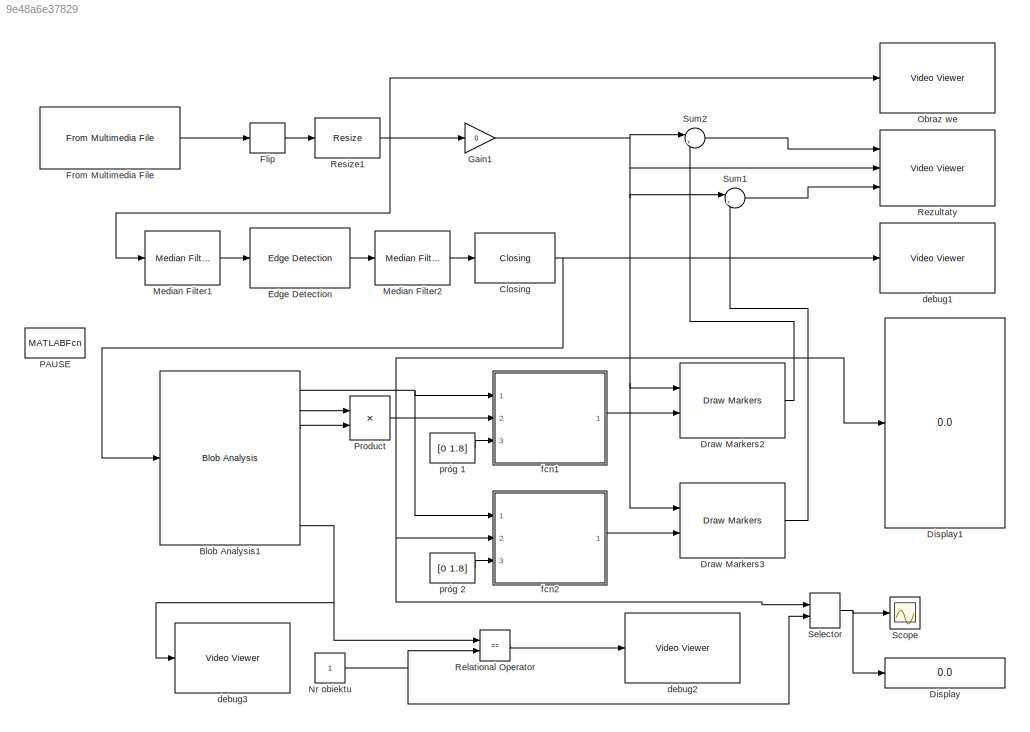
MODEL slx_9e48a6e37829
KIND model
BLOCK [Reference] Blob Analysis1  REF=visionstatistics/Blob Analysis
  LockScale = off
  MultiThreadCoSim = auto
  Ports = [1, 8]
  SourceBlock = visionstatistics/Blob Analysis
  SourceType = Blob Analysis
  Tag = vipblks_row_conv
  accumFracLength = 0
  accumMode = Binary point scaling
  accumWordLength = 32
  angle = off
  area = off
  bBox = off
  centroid = on
  conn = 8
  eccentricity = on
  equivDiameterSq = on
  excludeBorderBlob = off
  extent = on
  fillValues = -1
  firstCoeffFracLength = 14
  firstCoeffMode = Binary point scaling
  firstCoeffWordLength = 16
  isCount = off
  isFill = on
  isLabel = on
  isOutVarDim = off
  majorAxis = on
  maxArea = intmax('uint32')
  maxBlobs = 10
  memoryFracLength = 16
  memoryMode = Same as product output
  memoryWordLength = 32
  minArea = 45
  minorAxis = on
  outDT = double
  outputFracLength = 16
  outputMode = Binary point scaling
  outputWordLength = 32
  overflowMode = off
  perimeter = on
  prodOutputFracLength = 16
  prodOutputMode = Binary point scaling
  prodOutputWordLength = 32
  roundingMode = Floor
  secondCoeffFracLength = 16
  secondCoeffMode = Binary point scaling
  secondCoeffWordLength = 32
  useMaxArea = off
  useMinArea = on
  warnIfNumBlobsExceeded = on
BLOCK [Reference] Closing  REF=visionmorphops/Closing
  MultiThreadCoSim = auto
  Ports = [1, 1]
  SourceBlock = visionmorphops/Closing
  SourceType = Closing
  nhoodsrc = Specify via dialog
  strel = strel('line',5,45)
BLOCK [Display] Display
  Decimation = 1
  Ports = [1]
BLOCK [Display] Display1
  Decimation = 1
  Ports = [1]
BLOCK [Reference] Draw Markers2  REF=visiontextngfix/Draw Markers
  LockScale = off
  MultiThreadCoSim = auto
  Ports = [2, 1]
  SourceBlock = visiontextngfix/Draw Markers
  SourceType = Draw Markers
  accumFracLength = 14
  accumMode = Same as product output
  accumWordLength = 32
  antialiasing = off
  color = [200 255 100]
  display = White
  fill = on
  fillClrSource = Specify via dialog
  imagePorts = One multidimensional signal
  inType = Obsolete
  intensity = 200
  memoryFracLength = 14
  memoryMode = Specify word length
  memoryWordLength = 16
  opacity = 0.5
  overflowMode = off
  prodOutputFracLength = 14
  prodOutputMode = Binary point scaling
  prodOutputWordLength = 32
  roundingMode = Floor
  shape = Circle
  size = 10
  viewport = Entire image
BLOCK [Reference] Draw Markers3  REF=visiontextngfix/Draw Markers
  LockScale = off
  MultiThreadCoSim = auto
  Ports = [2, 1]
  SourceBlock = visiontextngfix/Draw Markers
  SourceType = Draw Markers
  accumFracLength = 14
  accumMode = Same as product output
  accumWordLength = 32
  antialiasing = off
  color = [200 255 100]
  display = White
  fill = on
  fillClrSource = Specify via dialog
  imagePorts = One multidimensional signal
  inType = Obsolete
  intensity = 200
  memoryFracLength = 14
  memoryMode = Specify word length
  memoryWordLength = 16
  opacity = 0.5
  overflowMode = off
  prodOutputFracLength = 14
  prodOutputMode = Binary point scaling
  prodOutputWordLength = 32
  roundingMode = Floor
  shape = Circle
  size = 10
  viewport = Entire image
BLOCK [Reference] Edge Detection  REF=visionanalysis/Edge Detection
  LockScale = off
  MultiThreadCoSim = auto
  Ports = [1, 1]
  SourceBlock = visionanalysis/Edge Detection
  SourceType = Edge Detection
  accumFracLength = 8
  accumMode = Same as product output
  accumSlope = 2^-8
  accumWordLength = 32
  autoPercent = 70
  edgeThinning = off
  method = Sobel
  outputFracLength = 4
  outputMode = Same as first input
  outputSlope = 2^-4
  outputType = Binary image
  outputWordLength = 16
  overflowMode = off
  prodOutputFracLength = 8
  prodOutputMode = Binary point scaling
  prodOutputSlope = 2^-8
  prodOutputWordLength = 32
  roundingMode = Floor
  sigma = 1
  threshold = 20
  thresholdSource = Input port
  thresholdTuning = 4
  threshold_canny = [0.25 0.60]
  userDefinedThreshold = off
BLOCK [DSPFlip] Flip
BLOCK [Reference] From Multimedia File  REF=dspvision/From Multimedia File
  MultiThreadCoSim = auto
  Ports = [0, 1]
  SourceBlock = dspvision/From Multimedia File
  SourceType = From Multimedia File
  audioDataType = int16
  audioFrameSize = 1024
  colorVideoFormat = One multidimensional signal
  computeAudioFrameSize = off
  dataOrg = Column-major
  fourcc = Intensity
  inheritSampleTime = off
  inputFilename = video1.avi
  isIntensityVideo = off
  loop = on
  noAudioOutput = off
  numPlays = inf
  outSamplingMode = Sample based
  outputEOF = off
  outputStreams = Video only
  userDefinedSampleTime = 1
  videoDataType = single
BLOCK [Gain] Gain1
  Gain = 0
  OutDataTypeStr = Inherit: Inherit via internal rule
  ParamDataTypeStr = Inherit: Inherit via internal rule
  SaturateOnIntegerOverflow = off
BLOCK [Reference] Median Filter1  REF=visionanalysis/Median Filter
  LockScale = off
  MultiThreadCoSim = auto
  Ports = [1, 1]
  SourceBlock = visionanalysis/Median Filter
  SourceType = Median Filter
  accumFracLength = 30
  accumMode = Same as input
  accumWordLength = 32
  nghbood = [3 3]
  outSize = Same as input port I
  outputFracLength = 15
  outputMode = Same as input
  outputWordLength = 16
  overflowMode = off
  padSrc = Specify via dialog
  padType = Constant
  padVal = 0
  prodOutputFracLength = 30
  prodOutputMode = Same as input
  prodOutputWordLength = 32
  roundingMode = Floor
BLOCK [Reference] Median Filter2  REF=visionanalysis/Median Filter
  LockScale = off
  MultiThreadCoSim = auto
  Ports = [1, 1]
  SourceBlock = visionanalysis/Median Filter
  SourceType = Median Filter
  accumFracLength = 30
  accumMode = Same as input
  accumWordLength = 32
  nghbood = [3 3]
  outSize = Same as input port I
  outputFracLength = 15
  outputMode = Same as input
  outputWordLength = 16
  overflowMode = off
  padSrc = Specify via dialog
  padType = Constant
  padVal = 0
  prodOutputFracLength = 30
  prodOutputMode = Same as input
  prodOutputWordLength = 32
  roundingMode = Floor
BLOCK [Constant] Nr obiektu
BLOCK [Reference] Obraz we  REF=visionsinks/Video Viewer
  AxisZoom = on
  FigPos = [28 444 410 300]
  MultiThreadCoSim = auto
  OpenAtMdlStart = on
  Ports = [1]
  SourceBlock = visionsinks/Video Viewer
  SourceType = Video Viewer
  UserDataPersistent = on
  colormapValue = gray(256)
  imagePorts = One multidimensional signal
  inputType = Obsolete7b
  maxInputVal = 255
  minInputVal = 0
  specRange = off
  trueSizedOnce = off
  useColorMap = off
BLOCK [MATLABFcn] PAUSE
  MATLABFcn = pause(0.05)
  OutputDimensions = 0
  Ports = [1]
BLOCK [Product] Product
  InputSameDT = off
  Inputs = */
  OutDataTypeStr = Inherit: Inherit via internal rule
  Ports = [2, 1]
  SaturateOnIntegerOverflow = off
BLOCK [RelationalOperator] Relational Operator
  InputSameDT = off
  Operator = ==
  OutDataTypeStr = boolean
  Ports = [2, 1]
BLOCK [Reference] Resize1  REF=visiongeotforms/Resize
  LockScale = off
  MultiThreadCoSim = auto
  Ports = [1, 1]
  SourceBlock = visiongeotforms/Resize
  SourceType = Resize
  accumFracLength = 10
  accumMode = Same as product output
  accumWordLength = 32
  antialias = on
  firstCoeffFracLength = 31
  firstCoeffMode = Same word length as input
  firstCoeffWordLength = 32
  interp_method = Bilinear
  outCols = 25
  outRows = 25
  outRowsCols = [25 35]
  outputFracLength = 10
  outputMode = Same as input
  outputWordLength = 32
  overflowMode = on
  prodOutputFracLength = 10
  prodOutputMode = Binary point scaling
  prodOutputWordLength = 32
  rfactor = [100 100]
  roiFlag = off
  roundingMode = Nearest
  specify = Output size as a percentage of input size
  useROI = off
BLOCK [Reference] Rezultaty  REF=visionsinks/Video Viewer
  AxisZoom = on
  FigPos = [887 447 408 298]
  MultiThreadCoSim = auto
  OpenAtMdlStart = on
  Ports = [3]
  SourceBlock = visionsinks/Video Viewer
  SourceType = Video Viewer
  UserDataPersistent = on
  colormapValue = gray(256)
  imagePorts = separate color signals
  inputType = Obsolete7b
  maxInputVal = 255
  minInputVal = 0
  specRange = off
  trueSizedOnce = off
  useColorMap = off
BLOCK [Scope] Scope
  DataFormat = StructureWithTime
  Decimation = 1
  Floating = off
  Grid = on
  LimitDataPoints = on
  MaxDataPoints = 5000
  NumInputPorts = 1
  Ports = [1]
  SampleInput = off
  SampleTime = -1
  SaveName = ScopeData
  SaveToWorkspace = off
  ShowLegends = off
  TickLabels = OneTimeTick
  TimeRange = auto
  YMax = 2.87393
  YMin = 0.80637
  ZoomMode = on
BLOCK [Selector] Selector
  IndexOptions = Index vector (port)
  Indices = 1
  OutputSizes = 1
  Ports = [2, 1]
BLOCK [Sum] Sum1
  IconShape = round
  InputSameDT = off
  Inputs = |++
  OutDataTypeStr = Inherit: Inherit via internal rule
  Ports = [2, 1]
  SaturateOnIntegerOverflow = off
BLOCK [Sum] Sum2
  IconShape = round
  InputSameDT = off
  Inputs = |++
  OutDataTypeStr = Inherit: Inherit via internal rule
  Ports = [2, 1]
  SaturateOnIntegerOverflow = off
BLOCK [Reference] debug1  REF=visionsinks/Video Viewer
  AxisZoom = on
  FigPos = [455 447 410 300]
  MultiThreadCoSim = auto
  OpenAtMdlStart = on
  Ports = [1]
  SourceBlock = visionsinks/Video Viewer
  SourceType = Video Viewer
  UserDataPersistent = on
  colormapValue = gray(256)
  imagePorts = One multidimensional signal
  inputType = Obsolete7b
  maxInputVal = 255
  minInputVal = 0
  specRange = off
  trueSizedOnce = off
  useColorMap = off
BLOCK [Reference] debug2  REF=visionsinks/Video Viewer
  AxisZoom = on
  FigPos = [458.6 803.6 409.6 300]
  MultiThreadCoSim = auto
  OpenAtMdlStart = on
  Ports = [1]
  SourceBlock = visionsinks/Video Viewer
  SourceType = Video Viewer
  UserDataPersistent = on
  colormapValue = gray(256)
  imagePorts = One multidimensional signal
  inputType = Obsolete7b
  maxInputVal = 255
  minInputVal = 0
  specRange = off
  trueSizedOnce = off
  useColorMap = off
BLOCK [Reference] debug3  REF=visionsinks/Video Viewer
  AxisZoom = on
  FigPos = [882.6 802 409.6 300]
  MultiThreadCoSim = auto
  OpenAtMdlStart = on
  Ports = [1]
  SourceBlock = visionsinks/Video Viewer
  SourceType = Video Viewer
  UserDataPersistent = on
  colormapValue = jet(256)
  imagePorts = One multidimensional signal
  inputType = Obsolete7b
  maxInputVal = 10
  minInputVal = 0
  specRange = on
  trueSizedOnce = off
  useColorMap = on
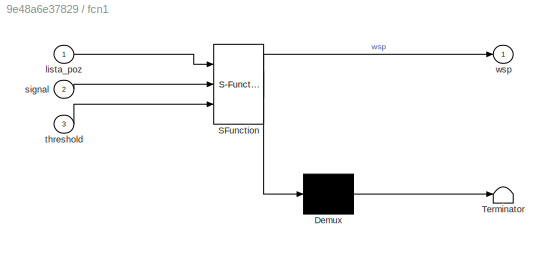
BLOCK [SubSystem] fcn1
  ErrorFcn = Stateflow.Translate.translate
  FunctionWithSeparateData = off
  MaskHideContents = off
  MinAlgLoopOccurrences = off
  Opaque = off
  PermitHierarchicalResolution = ParametersOnly
  Ports = [3, 1]
  PropExecContextOutsideSubsystem = off
  RTWSystemCode = Auto
  RequestExecContextInheritance = off
  SFBlockType = MATLAB Function
  TreatAsAtomicUnit = on
BLOCK [Demux] fcn1/ Demux 
  Outputs = 1
  Ports = [1, 1]
BLOCK [S-Function] fcn1/ SFunction 
  EnableBusSupport = on
  FunctionName = sf_sfun
  PortCounts = [3 2]
  Ports = [3, 2]
  SFunctionDeploymentMode = off
  Tag = Stateflow S-Function vrguiJP_R2012b_wersja2 2
BLOCK [Terminator] fcn1/ Terminator 
BLOCK [Inport] fcn1/lista_poz
  IconDisplay = Port number
BLOCK [Inport] fcn1/signal
  IconDisplay = Port number
  Port = 2
BLOCK [Inport] fcn1/threshold
  IconDisplay = Port number
  Port = 3
BLOCK [Outport] fcn1/wsp
  IconDisplay = Port number
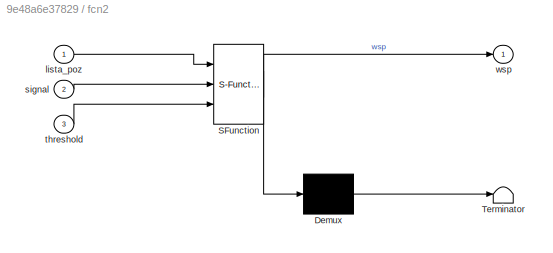
BLOCK [SubSystem] fcn2
  ErrorFcn = Stateflow.Translate.translate
  FunctionWithSeparateData = off
  MaskHideContents = off
  MinAlgLoopOccurrences = off
  Opaque = off
  PermitHierarchicalResolution = ParametersOnly
  Ports = [3, 1]
  PropExecContextOutsideSubsystem = off
  RTWSystemCode = Auto
  RequestExecContextInheritance = off
  SFBlockType = MATLAB Function
  TreatAsAtomicUnit = on
BLOCK [Demux] fcn2/ Demux 
  Outputs = 1
  Ports = [1, 1]
BLOCK [S-Function] fcn2/ SFunction 
  EnableBusSupport = on
  FunctionName = sf_sfun
  PortCounts = [3 2]
  Ports = [3, 2]
  SFunctionDeploymentMode = off
  Tag = Stateflow S-Function vrguiJP_R2012b_wersja2 1
BLOCK [Terminator] fcn2/ Terminator 
BLOCK [Inport] fcn2/lista_poz
  IconDisplay = Port number
BLOCK [Inport] fcn2/signal
  IconDisplay = Port number
  Port = 2
BLOCK [Inport] fcn2/threshold
  IconDisplay = Port number
  Port = 3
BLOCK [Outport] fcn2/wsp
  IconDisplay = Port number
BLOCK [Constant] próg 1
  Value = [0 1.8]
BLOCK [Constant] próg 2
  Value = [0 1.8]
NET Blob Analysis1:1 -> fcn1:1, fcn2:1
LINE Blob Analysis1:2 -> Product:1
LINE Blob Analysis1:3 -> Product:2
NET Blob Analysis1:8 -> Relational Operator:1, debug3:1
NET Closing:1 -> Blob Analysis1:1, debug1:1
LINE Draw Markers2:1 -> Sum2:2
LINE Draw Markers3:1 -> Sum1:2
LINE Edge Detection:1 -> Median Filter2:1
LINE Flip:1 -> Resize1:1
LINE From Multimedia File:1 -> Flip:1
NET Gain1:1 -> Draw Markers2:1, Draw Markers3:1, Rezultaty:2, Sum1:1, Sum2:1
LINE Median Filter1:1 -> Edge Detection:1
LINE Median Filter2:1 -> Closing:1
NET Nr obiektu:1 -> Relational Operator:2, Selector:2
NET Product:1 -> Display1:1, Selector:1, fcn1:2, fcn2:2
LINE Relational Operator:1 -> debug2:1
NET Resize1:1 -> Gain1:1, Median Filter1:1, Obraz we:1
NET Selector:1 -> Display:1, Scope:1
LINE Sum1:1 -> Rezultaty:3
LINE Sum2:1 -> Rezultaty:1
LINE fcn1:1 -> Draw Markers2:2
LINE fcn2:1 -> Draw Markers3:2
LINE próg 1:1 -> fcn1:3
LINE próg 2:1 -> fcn2:3
note: NET lines group one-source signal fan-out (src -> all destinations, sorted); 1:1 wires keep LINE
